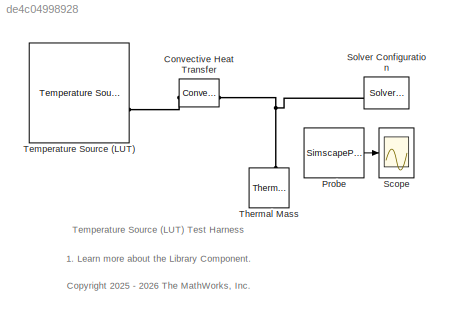
MODEL slx_de4c04998928
KIND model
CONFIG AbsTol = 1e-3
CONFIG EnableMultiTasking = off
CONFIG FixedStep = 3600
CONFIG MaxStep = 3
CONFIG MinStep = auto
CONFIG PreLoadFcn = WallModelParams
CONFIG RelTol = 1e-3
CONFIG SampleTimeConstraint = Unconstrained
CONFIG SolverName = daessc
CONFIG StartTime = 0.0
CONFIG StopTime = 24*3600
BLOCK [Reference] Convective Heat Transfer  REF=fl_lib/Thermal/Thermal Elements/Convective Heat
Transfer
  SourceBlock = fl_lib/Thermal/Thermal Elements/Convective Heat\nTransfer
  SourceType = Convective Heat\nTransfer
BLOCK [SimscapeProbe] Probe
  BoundBlock = 270
  Variables = {H.T}
BLOCK [Scope] Scope
  ActiveDisplayYMaximum = 307.8191
  ActiveDisplayYMinimum = 300.9751
  Floating = off
  GraphicalSettings = {"GraphicalSettings":{"LegacySettings":true,"Style":{"AxesScalingProperties":{"ScaleAxesLimitsAtStop":false},"Style":{"AxesColor":"[0 0 0]","ChannelNames":[""],"ColorOrder":"[1 0.909803921568627 0.392156862745098;0.149019607843137 0.549019607843137 0.866666666666667;0.96078431372549 0.466666666666667 0.16078431372549;0.286274509803922 0.858823529411765 0.250980392156863;0.752941176470588 0.3607843...<+513ch>
  MultipleDisplayCache = [{"MaxYLimMag":307.8191,"MaxYLimReal":307.8191,"MinYLimMag":300.9751,"MinYLimReal":300.9751,"PlotAsMagnitudePhase":false,"ShowGrid":true,"ShowLegend":false,"Title":"%<SignalLabel>","YLabel":""}]
  NumInputPorts = 1
  ScopeFrameLocation = window
  Visible = on
  WasSavedAsWebScope = on
  WindowPosition = [908.000000,398.000000,314.000000,398.000000,]
BLOCK [Reference] Solver Configuration  REF=nesl_utility/Solver
Configuration
  NameLocation = right
  SourceBlock = nesl_utility/Solver\nConfiguration
  SourceType = Solver\nConfiguration
BLOCK [Reference] Temperature Source (LUT)  REF=TemperatureSource_lib/Temperature Source
(LUT)
  SourceBlock = TemperatureSource_lib/Temperature Source\n(LUT)
  SourceType = Temperature Source\n(LUT)
BLOCK [Reference] Thermal Mass  REF=fl_lib/Thermal/Thermal Elements/Thermal Mass
  NameLocation = right
  SourceBlock = fl_lib/Thermal/Thermal Elements/Thermal Mass
  SourceType = Thermal Mass
ANNOTATION (root): 1. Learn more about the Library Component.
ANNOTATION (root): <copyright redacted>
ANNOTATION (root): Temperature Source (LUT) Test Harness
LINE Probe:1 -> Scope:1
PLINE Convective Heat Transfer:LConn1 -- Temperature Source (LUT):RConn1
PNET net1: Convective Heat Transfer:RConn1 -- Solver Configuration:RConn1 -- Thermal Mass:LConn1
note: PNET lines group multi-terminal physical nets as a canonical sorted terminal list (undirected conserving connections); 2-terminal nets keep the pairwise PLINE form
